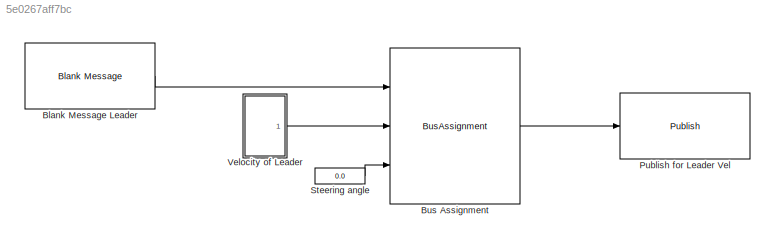
MODEL slx_5e0267aff7bc
KIND model
CONFIG AbsTol = auto
CONFIG FixedStep = auto
CONFIG MaxStep = auto
CONFIG MinStep = auto
CONFIG RelTol = 1e-3
CONFIG SampleTimeConstraint = Unconstrained
CONFIG Solver = FixedStepAuto
CONFIG SolverMode = Auto
CONFIG SolverName = FixedStepAuto
CONFIG StartTime = 0.0
CONFIG StopTime = inf
BLOCK [Reference] Blank Message Leader  REF=robotlib/Blank Message
  Ports = [0, 1]
  SourceBlock = robotlib/Blank Message
  SourceLibraryInfo = This block requires Robotics System Toolbox
  SourceType = ROS Blank Message
BLOCK [BusAssignment] Bus Assignment
  AssignedSignals = Linear.X,Angular.Z
  Ports = [3, 1]
BLOCK [Reference] Publish for Leader Vel  REF=robotlib/Publish
  Ports = [1]
  SourceBlock = robotlib/Publish
  SourceLibraryInfo = This block requires Robotics System Toolbox
  SourceType = ROS Publish
BLOCK [Constant] Steering angle
  Value = 0.0
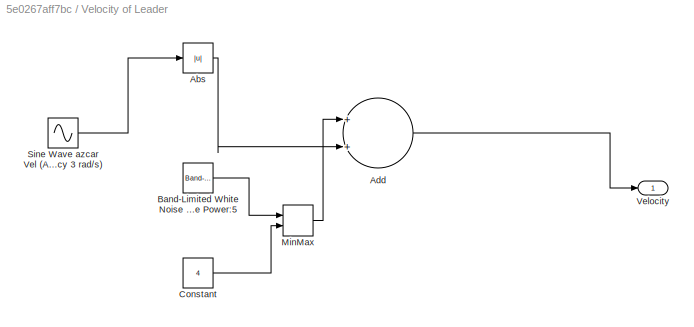
BLOCK [SubSystem] Velocity of Leader
  Ports = [0, 1]
  RequestExecContextInheritance = off
  Variant = off
BLOCK [Abs] Velocity of Leader/Abs
  SaturateOnIntegerOverflow = off
BLOCK [Sum] Velocity of Leader/Add
  InputSameDT = off
  OutDataTypeStr = Inherit: Inherit via internal rule
  Ports = [2, 1]
  SaturateOnIntegerOverflow = off
BLOCK [Reference] Velocity of Leader/Band-Limited White Noise Noise Power:5  REF=simulink/Sources/Band-Limited
White Noise
  Ports = [0, 1]
  SourceBlock = simulink/Sources/Band-Limited\nWhite Noise
  SourceType = Band-Limited White Noise.
BLOCK [Constant] Velocity of Leader/Constant
  Value = 4
BLOCK [MinMax] Velocity of Leader/MinMax
  InputSameDT = off
  Inputs = 2
  Ports = [2, 1]
  SaturateOnIntegerOverflow = off
BLOCK [Sin] Velocity of Leader/Sine Wave azcar Vel (Amplitude 5, Frequency 3 rad//s)
  Amplitude = 5
  Frequency = 3
  Ports = [0, 1]
  SampleTime = 0
BLOCK [Outport] Velocity of Leader/Velocity
  IconDisplay = Port number
LINE Blank Message Leader:1 -> Bus Assignment:1
LINE Bus Assignment:1 -> Publish for Leader Vel:1
LINE Steering angle:1 -> Bus Assignment:3
LINE Velocity of Leader/Abs:1 -> Velocity of Leader/Add:2
LINE Velocity of Leader/Add:1 -> Velocity of Leader/Velocity:1
LINE Velocity of Leader/Band-Limited White Noise Noise Power:5:1 -> Velocity of Leader/MinMax:1
LINE Velocity of Leader/Constant:1 -> Velocity of Leader/MinMax:2
LINE Velocity of Leader/MinMax:1 -> Velocity of Leader/Add:1
LINE Velocity of Leader/Sine Wave azcar Vel (Amplitude 5, Frequency 3 rad//s):1 -> Velocity of Leader/Abs:1
LINE Velocity of Leader:1 -> Bus Assignment:2
